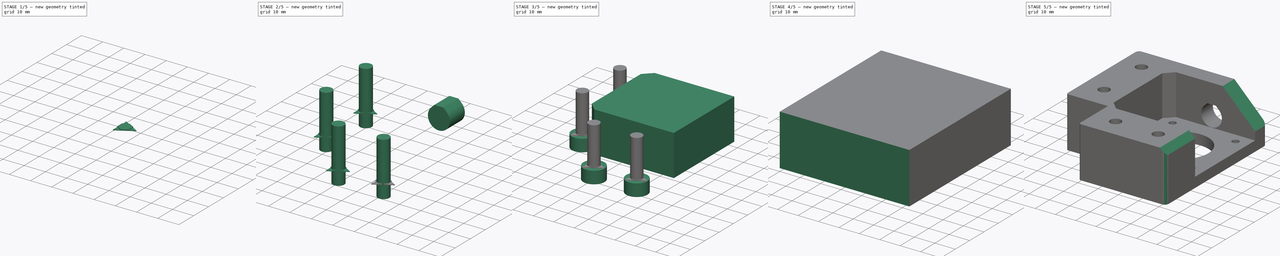
[diagram: build sequence overview — one tinted view per stage of 5, left to right]
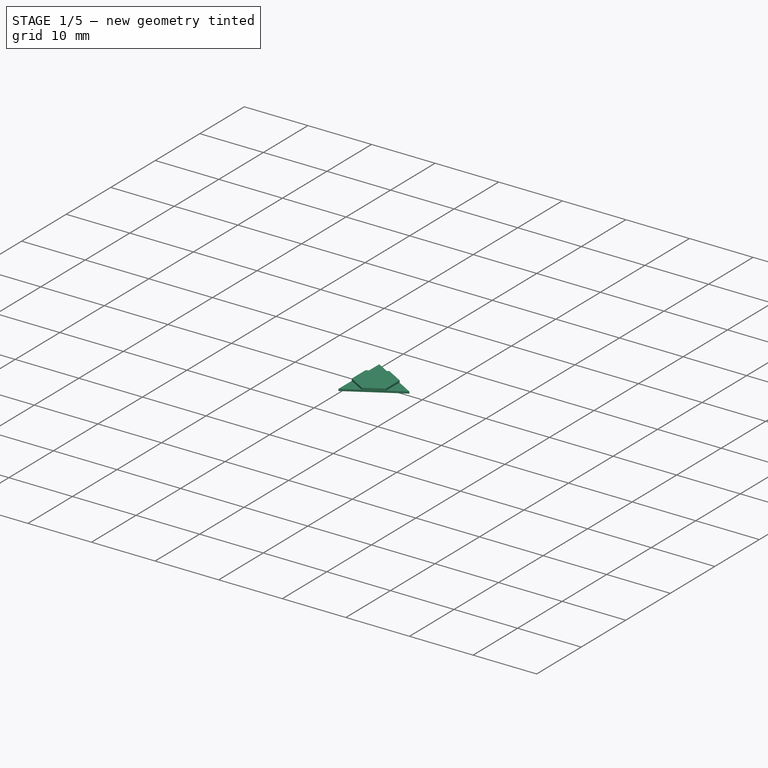
[diagram: stage 1 of 5 — iso view after this stage's code; geometry added in this stage tinted green]
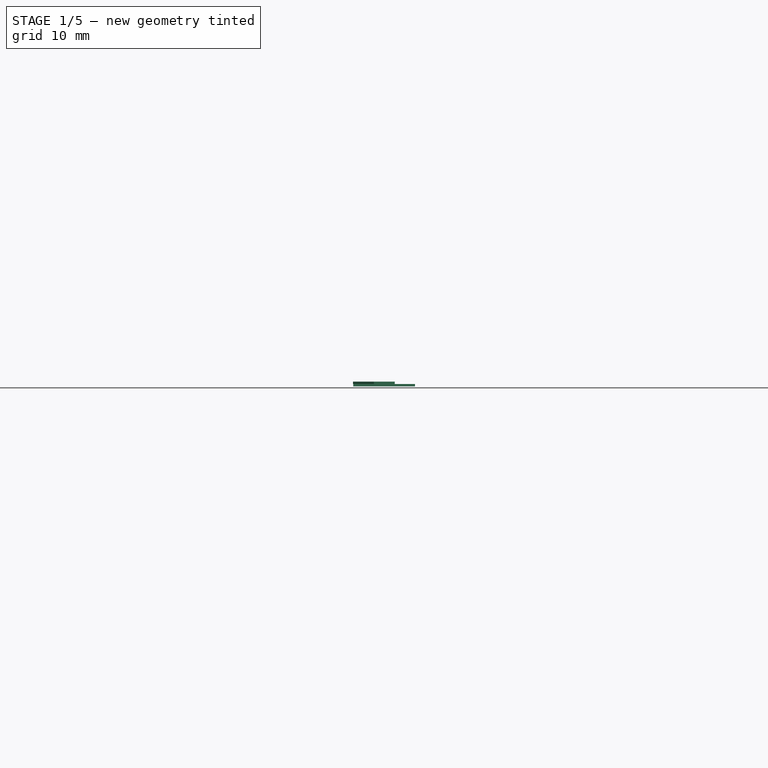
[diagram: stage 1 of 5 — front view after this stage's code; geometry added in this stage tinted green]
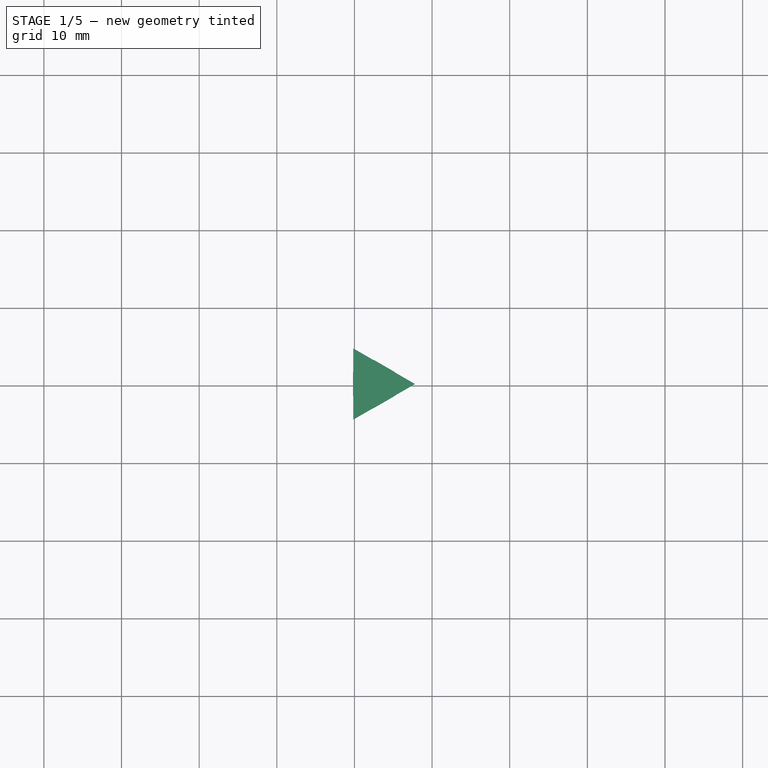
[diagram: stage 1 of 5 — top view after this stage's code; geometry added in this stage tinted green]
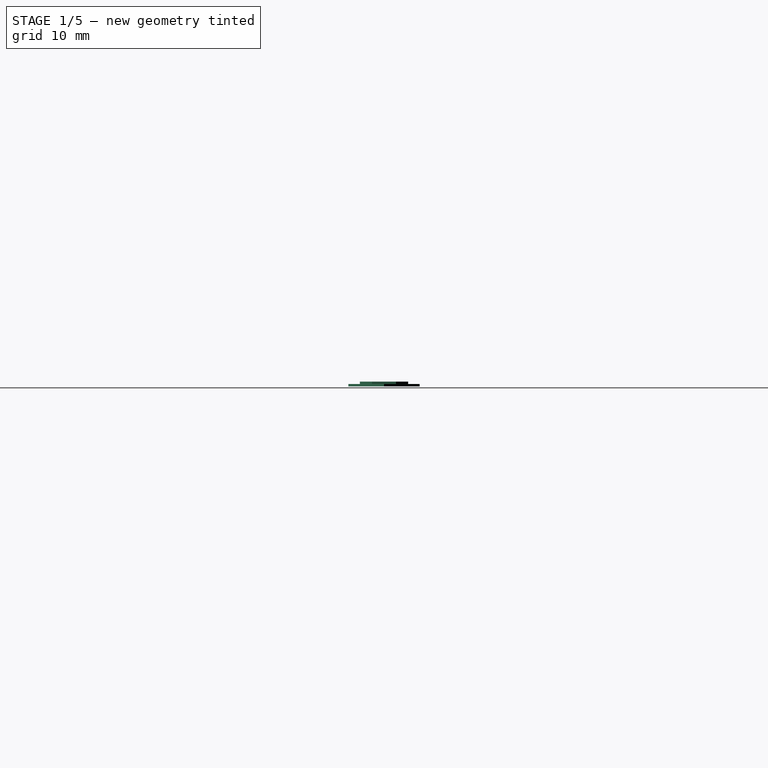
[diagram: stage 1 of 5 — right view after this stage's code; geometry added in this stage tinted green]
FCSTD DOCUMENT  (FreeCAD 0.15R4671 (Git))
Label: YmotorLeft_v02
License: All rights reserved
LicenseURL: http://en.wikipedia.org/wiki/All_rights_reserved
objects: Part::MultiFuse×5, Sketcher::SketchObject×4, Part::Extrusion×4, Part::Box×3, Part::Cut×3, Part::FeaturePython×3, Part::Chamfer×2, Part::Prism×2, Part::Fillet×1
note: 27 computed .brp shape members not serialized (recipe doc carries the construction recipe); baked Part::Feature solids carry a one-line shape summary decoded from their .brp

FEATURE [Part::Prism] Prism  label="triangulo_soporte"
  Circumradius = 5.3
  Height = 0.3
  Placement = pos=(10.25,32.5,6) rot=(0,0,1;0rad)
  Polygon = 3
FEATURE [Part::Prism] Prism001  label="hexagono_soporte"
  Circumradius = 3.1
  Height = 0.3
  Placement = pos=(10.25,32.5,6.3) rot=(0,0,1;0.523599rad)
  Polygon = 6
FEATURE [Part::MultiFuse] Fusion003  label="soporte_circulos"
  Shapes = -> [Prism,Prism001]
FEATURE [Part::FeaturePython] Clone001  label="soporte_circulos_3"  # Draft clone (typed FeaturePython)
  Objects = -> [Fusion003]
  Placement = pos=(21.25,-22.25,0) rot=(0,0,1;0rad)
  Scale = (1,1,1)
FEATURE [Part::FeaturePython] Clone002  label="soporte_circulos_4"  # Draft clone (typed FeaturePython)
  Objects = -> [Clone001]
  Placement = pos=(42.25,-22.25,0) rot=(0,0,1;0rad)
  Scale = (1,1,1)
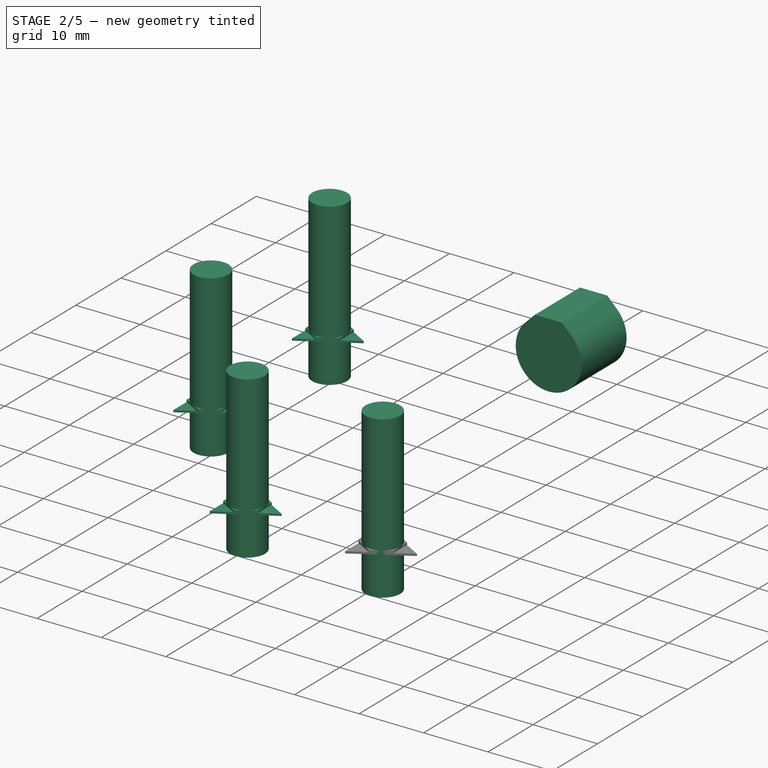
[diagram: stage 2 of 5 — iso view after this stage's code; geometry added in this stage tinted green]
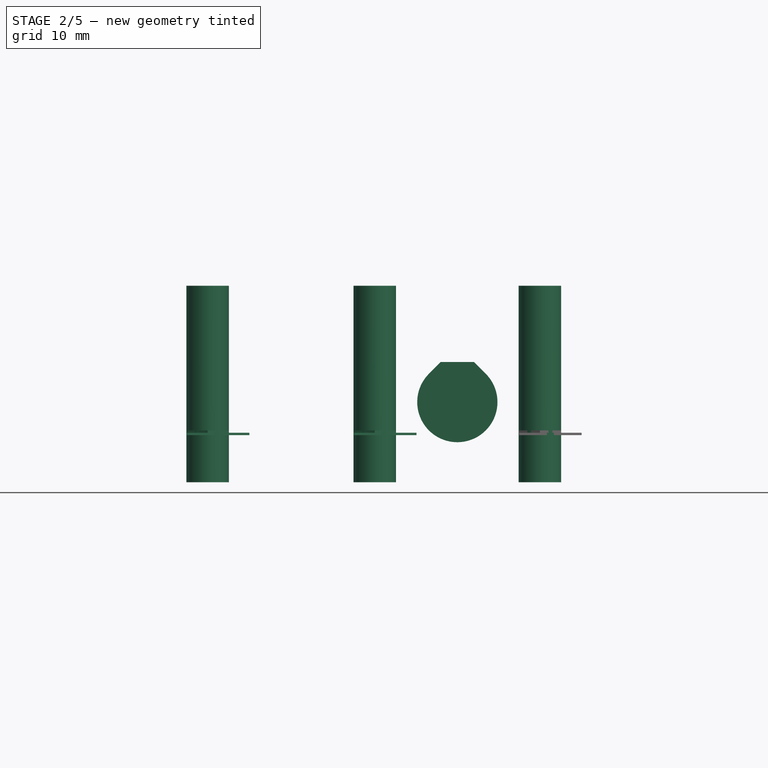
[diagram: stage 2 of 5 — front view after this stage's code; geometry added in this stage tinted green]
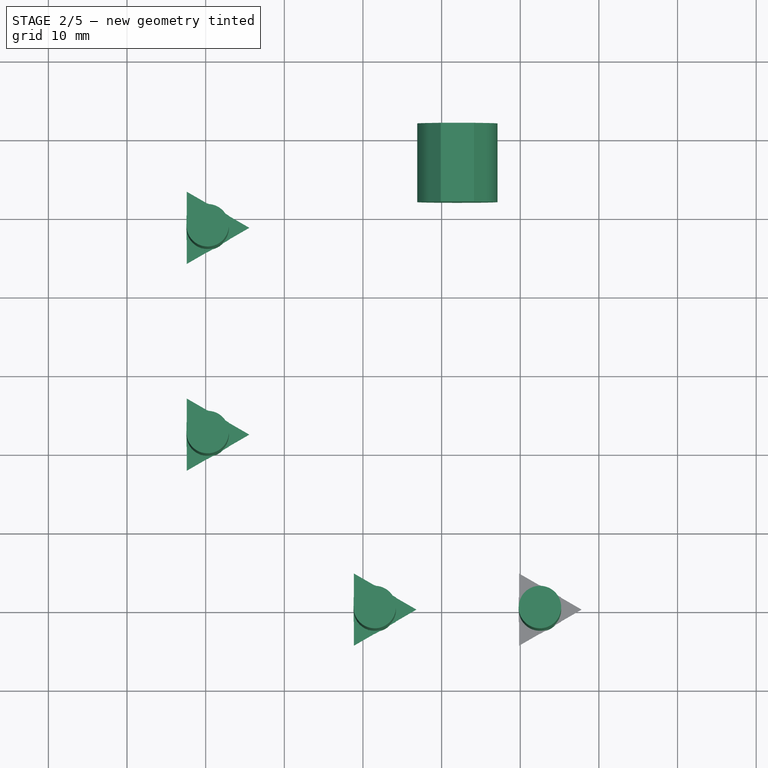
[diagram: stage 2 of 5 — top view after this stage's code; geometry added in this stage tinted green]
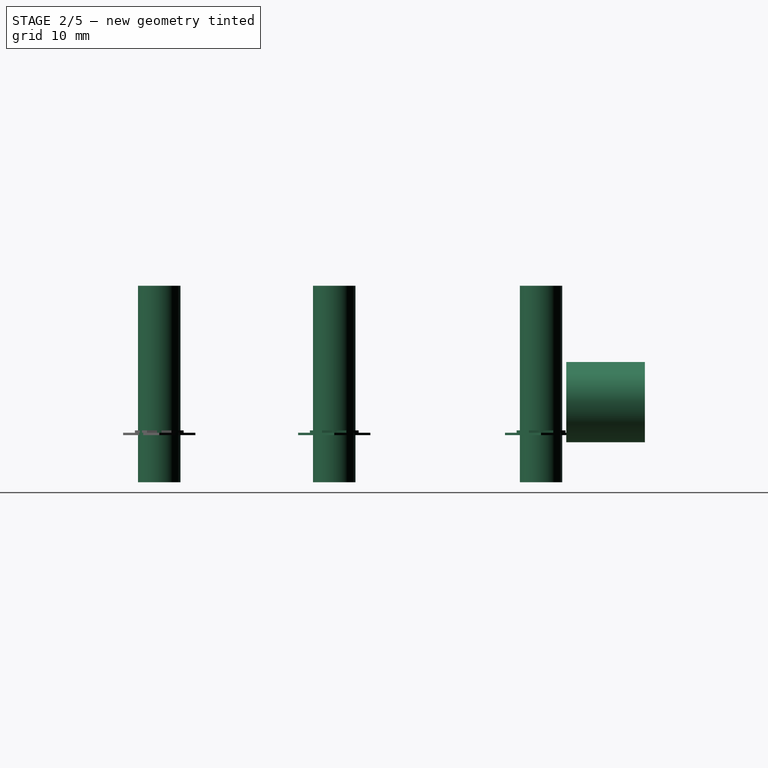
[diagram: stage 2 of 5 — right view after this stage's code; geometry added in this stage tinted green]
FEATURE [Sketcher::SketchObject] Sketch002  label="huecos_tornillos"
  sketch-geometry (4):
    g0: Circle CenterX=31.5 CenterY=10.25 CenterZ=0 NormalX=0 NormalY=0 NormalZ=1 Radius=2.7
    g1: Circle CenterX=52.5 CenterY=10.25 CenterZ=0 NormalX=0 NormalY=0 NormalZ=1 Radius=2.7
    g2: Circle CenterX=10.25 CenterY=32.5 CenterZ=0 NormalX=0 NormalY=0 NormalZ=1 Radius=2.7
    g3: Circle CenterX=10.25 CenterY=58.8 CenterZ=0 NormalX=0 NormalY=0 NormalZ=1 Radius=2.7
  constraints (12):
    c: DistanceY(g-1,g0) = 10.25
    c: Radius(g0) = 2.7
    c: DistanceX(g-1,g0) = 31.5
    c: DistanceY(g1,g0) = 0
    c: DistanceX(g1,g0) = -21
    c: Equal(g1,g0)
    c: DistanceX(g-1,g2) = 10.25
    c: Equal(g2,g0)
    c: DistanceY(g-1,g2) = 32.5
    c: DistanceX(g3,g2) = 0
    c: DistanceY(g3,g2) = -26.3
    c: Equal(g3,g2)
FEATURE [Part::Extrusion] Extrude002  label="huecos_tornillos_extr"
  Base = -> Sketch002
  Dir = (0,0,25)
  Solid = true
FEATURE [Sketcher::SketchObject] Sketch003  label="M10_repraphole"
  Placement = pos=(0,0,0) rot=(0.57735,0.57735,0.57735;2.0944rad)
  sketch-geometry (4):
    g0: ArcOfCircle CenterX=0 CenterY=0 CenterZ=0 NormalX=0 NormalY=0 NormalZ=1 Radius=5.1 StartAngle=2.3562 EndAngle=7.06858
    g1: LineSegment StartX=-3.60626 StartY=3.60623 StartZ=0 EndX=-2.11249 EndY=5.1 EndZ=0
    g2: LineSegment StartX=2.11249 StartY=5.1 StartZ=0 EndX=3.60626 EndY=3.60623 EndZ=0
    g3: LineSegment StartX=-2.11249 StartY=5.1 StartZ=0 EndX=2.11249 EndY=5.1 EndZ=0
  constraints (12):
    c: Coincident(g0,g-1)
    c: Radius(g0) = 5.1  'M5'
    c: Angle(g-1,g1) = 0.785398
    c: Horizontal(g3)
    c: Coincident(g3,g1)
    c: Coincident(g3,g2)
    c: Coincident(g0,g1)
    c: Coincident(g0,g2)
    c: DistanceY(g-1,g1) = 5.1  'M5radio'
    c: Angle(g2,g-1) = 0.785398
    c: Tangent(g2,g0)
    c: Tangent(g1,g0)
FEATURE [Part::Extrusion] Extrude003  label="M10_repraphole_extr"
  Base = -> Sketch003
  Dir = (10,0,0)
  Placement = pos=(42,62,10.2) rot=(0,0,1;1.5708rad)
  Solid = true
FEATURE [Part::FeaturePython] Clone  label="soporte_circulos_2"  # Draft clone (typed FeaturePython)
  Objects = -> [Fusion003]
  Placement = pos=(0,26.3,0) rot=(0,0,1;0rad)
  Scale = (1,1,1)
FEATURE [Part::MultiFuse] Fusion004  label="huecos_soporte_taladros"
  Shapes = -> [Fusion003,Clone,Clone001,Clone002]
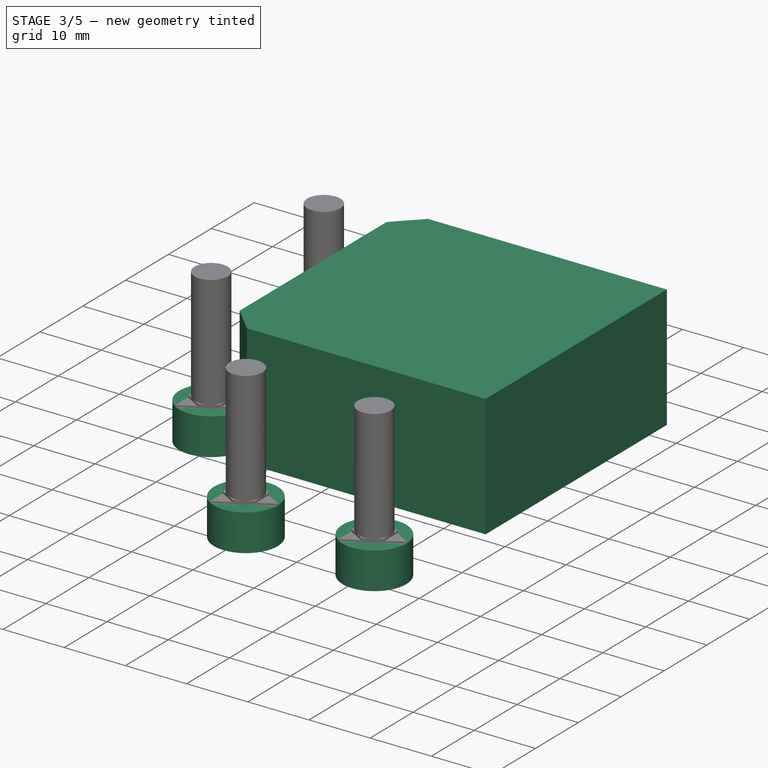
[diagram: stage 3 of 5 — iso view after this stage's code; geometry added in this stage tinted green]
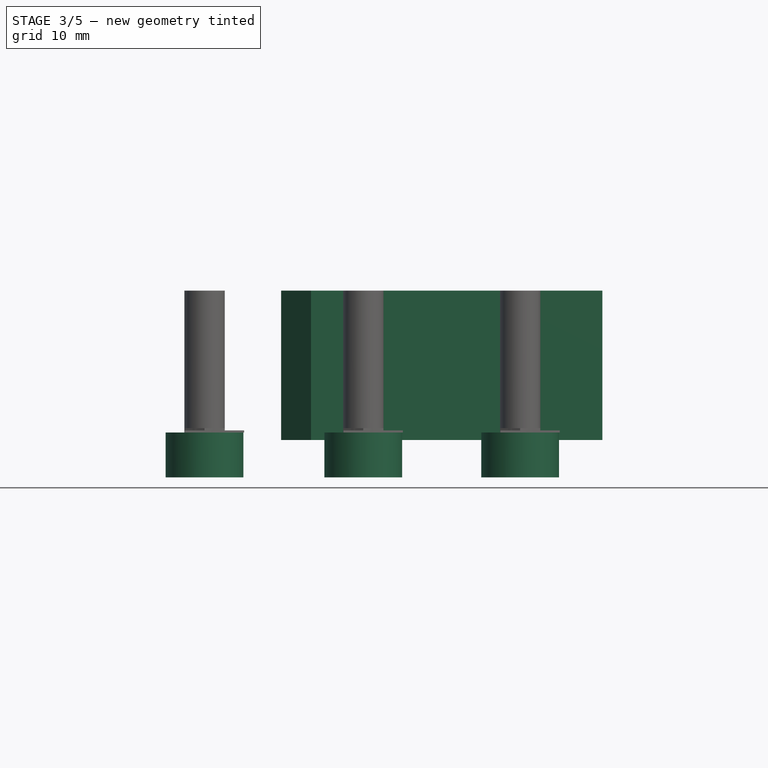
[diagram: stage 3 of 5 — front view after this stage's code; geometry added in this stage tinted green]
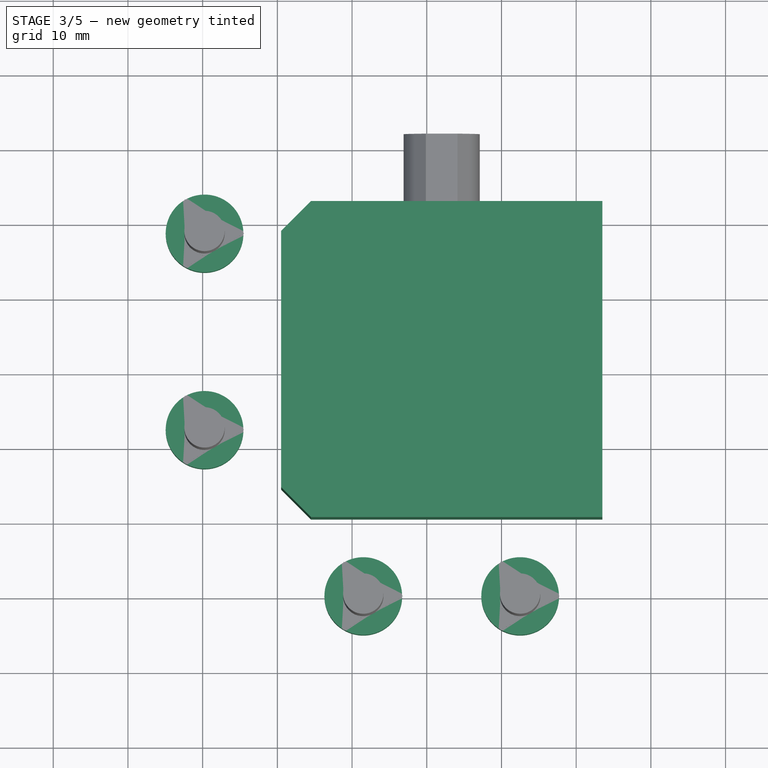
[diagram: stage 3 of 5 — top view after this stage's code; geometry added in this stage tinted green]
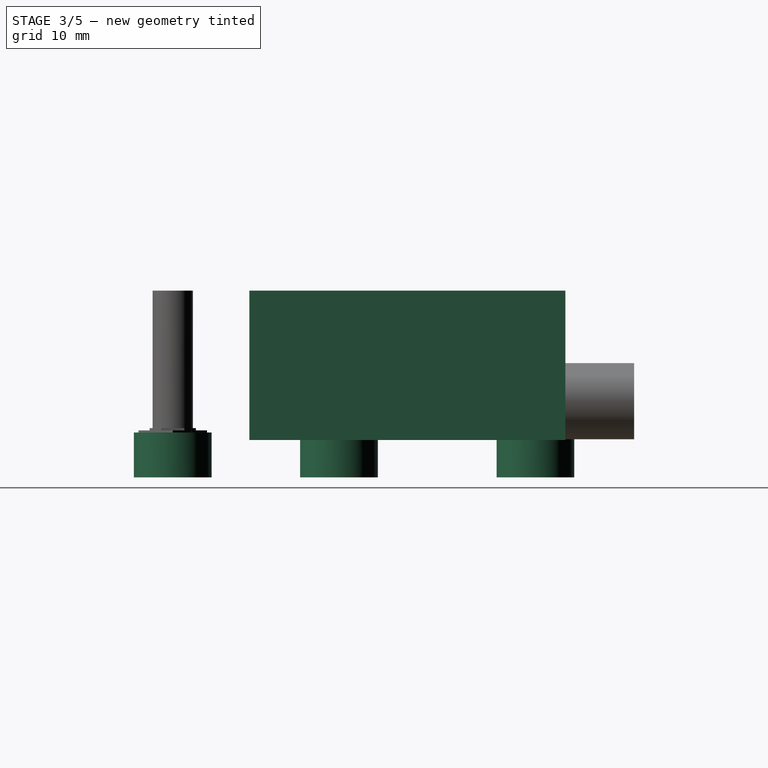
[diagram: stage 3 of 5 — right view after this stage's code; geometry added in this stage tinted green]
FEATURE [Part::Box] Box002  label="hueco_motor"
  Height = 20
  Length = 43
  Placement = pos=(20.5,20.5,5) rot=(0,0,1;0rad)
  Width = 42.3
FEATURE [Part::Chamfer] Chamfer  label="hueco_motor_chaflan"
  Base = -> Box002
  Edges = 2 edges r=4: [Edge1,Edge3]
FEATURE [Sketcher::SketchObject] Sketch001  label="huecos_cabeza_tornillos"
  sketch-geometry (4):
    g0: Circle CenterX=31.5 CenterY=10.25 CenterZ=0 NormalX=0 NormalY=0 NormalZ=1 Radius=5.2
    g1: Circle CenterX=52.5 CenterY=10.25 CenterZ=0 NormalX=0 NormalY=0 NormalZ=1 Radius=5.2
    g2: Circle CenterX=10.25 CenterY=32.5 CenterZ=0 NormalX=0 NormalY=0 NormalZ=1 Radius=5.2
    g3: Circle CenterX=10.25 CenterY=58.8 CenterZ=0 NormalX=0 NormalY=0 NormalZ=1 Radius=5.2
  constraints (12):
    c: DistanceY(g-1,g0) = 10.25
    c: Radius(g0) = 5.2
    c: DistanceX(g-1,g0) = 31.5
    c: DistanceY(g1,g0) = 0
    c: DistanceX(g1,g0) = -21
    c: Equal(g1,g0)
    c: DistanceX(g-1,g2) = 10.25
    c: Equal(g2,g0)
    c: DistanceY(g-1,g2) = 32.5
    c: DistanceX(g3,g2) = 0
    c: DistanceY(g3,g2) = -26.3
    c: Equal(g3,g2)
FEATURE [Part::Extrusion] Extrude001  label="huecos_cabeza_tornillos_extr"
  Base = -> Sketch001
  Dir = (0,0,6)
  Solid = true
FEATURE [Part::MultiFuse] Fusion001  label="huecos_tornillos_todo"
  Shapes = -> [Extrude001,Extrude002]
FEATURE [Part::MultiFuse] Fusion005  label="huecos_2"
  Shapes = -> [Fusion001,Extrude003,Fusion004]
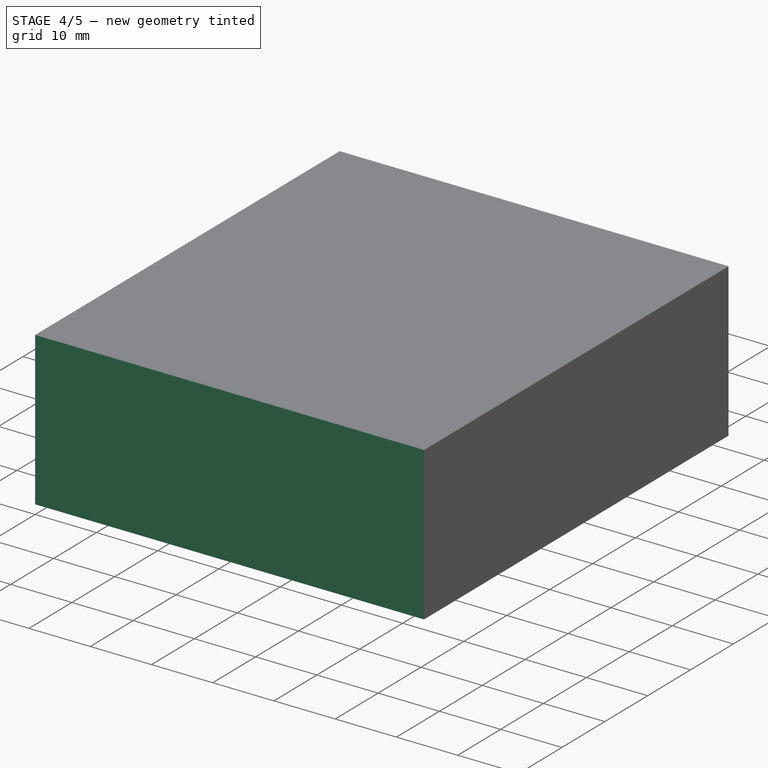
[diagram: stage 4 of 5 — iso view after this stage's code; geometry added in this stage tinted green]
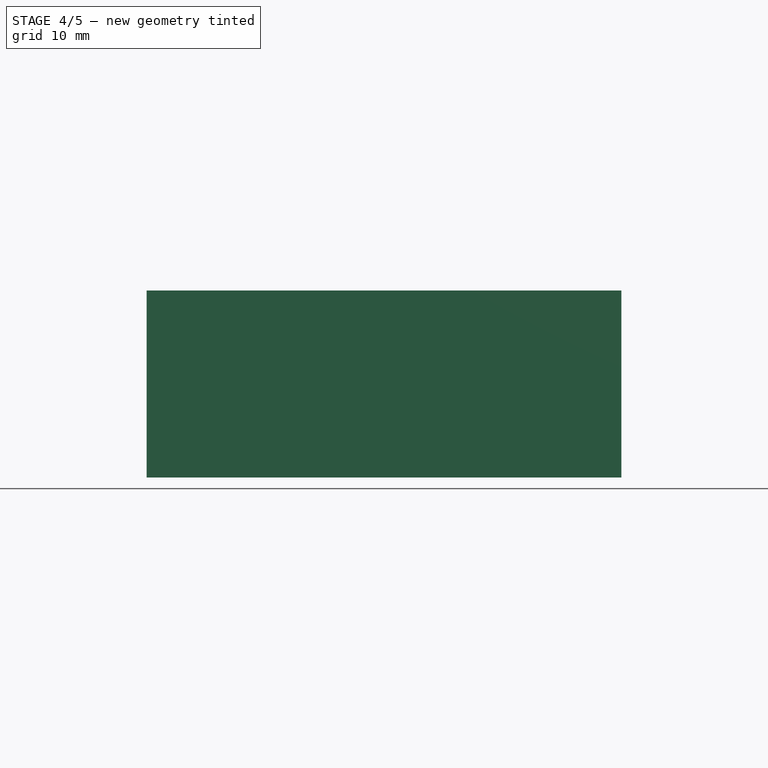
[diagram: stage 4 of 5 — front view after this stage's code; geometry added in this stage tinted green]
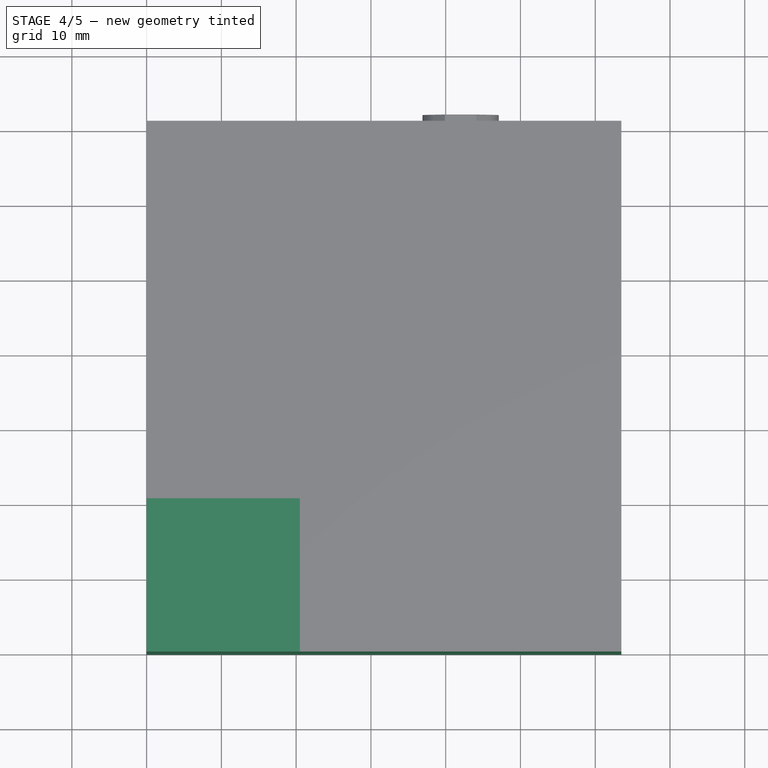
[diagram: stage 4 of 5 — top view after this stage's code; geometry added in this stage tinted green]
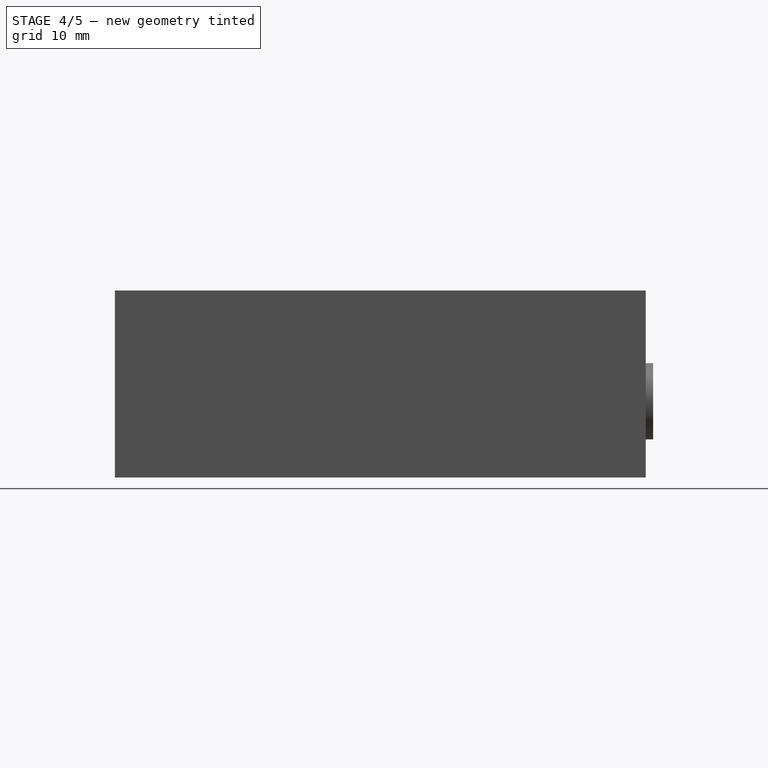
[diagram: stage 4 of 5 — right view after this stage's code; geometry added in this stage tinted green]
FEATURE [Part::Box] Box  label="cubo_base"
  Height = 25
  Length = 63.5
  Width = 71
FEATURE [Part::Box] Box001  label="hueco_columna_z"
  Height = 25
  Length = 20.5
  Width = 20.5
FEATURE [Sketcher::SketchObject] Sketch
  Placement = pos=(20.5,20.5,25) rot=(0,0,1;0rad)
  Support = -> Box002 [Face6]
  sketch-geometry (5):
    g0: Circle CenterX=21.5 CenterY=21.5 CenterZ=0 NormalX=0 NormalY=0 NormalZ=1 Radius=13
    g1: Circle CenterX=6 CenterY=37 CenterZ=0 NormalX=0 NormalY=0 NormalZ=1 Radius=1.65
    g2: Circle CenterX=37 CenterY=37 CenterZ=0 NormalX=0 NormalY=0 NormalZ=1 Radius=1.65
    g3: Circle CenterX=37 CenterY=6 CenterZ=0 NormalX=0 NormalY=0 NormalZ=1 Radius=1.65
    g4: Circle CenterX=6 CenterY=6 CenterZ=0 NormalX=0 NormalY=0 NormalZ=1 Radius=1.65
  constraints (15):
    c: DistanceY(g-1,g0) = 21.5
    c: DistanceX(g-1,g0) = 21.5
    c: Radius(g0) = 13
    c: DistanceX(g1,g0) = 15.5
    c: Radius(g1) = 1.65
    c: DistanceY(g2,g1) = 0
    c: DistanceY(g1,g0) = -15.5
    c: Equal(g2,g1)
    c: DistanceX(g2,g0) = -15.5
    c: DistanceX(g3,g2) = 0
    c: DistanceX(g4,g1) = 0
    c: DistanceY(g4,g3) = 0
    c: DistanceY(g3,g0) = 15.5
    c: Equal(g3,g2)
    c: Equal(g4,g3)
FEATURE [Part::Extrusion] Extrude  label="agujero_motor"
  Base = -> Sketch
  Dir = (0,0,5)
  Placement = pos=(0,0,-25) rot=(0,0,1;0rad)
  Solid = true
FEATURE [Part::MultiFuse] Fusion  label="hueco_motor_total"
  Shapes = -> [Chamfer,Extrude]
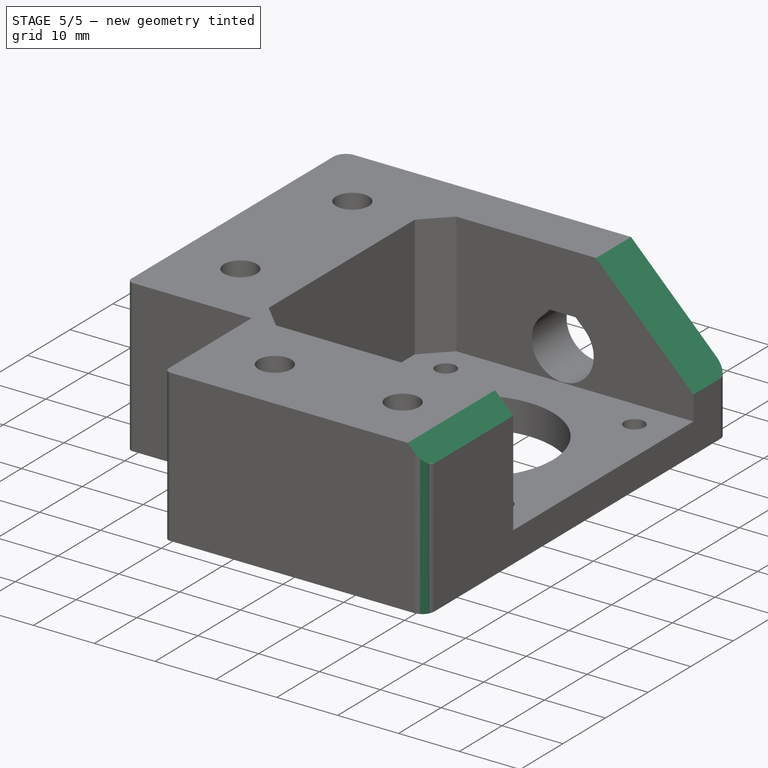
[diagram: stage 5 of 5 — iso view after this stage's code; geometry added in this stage tinted green]
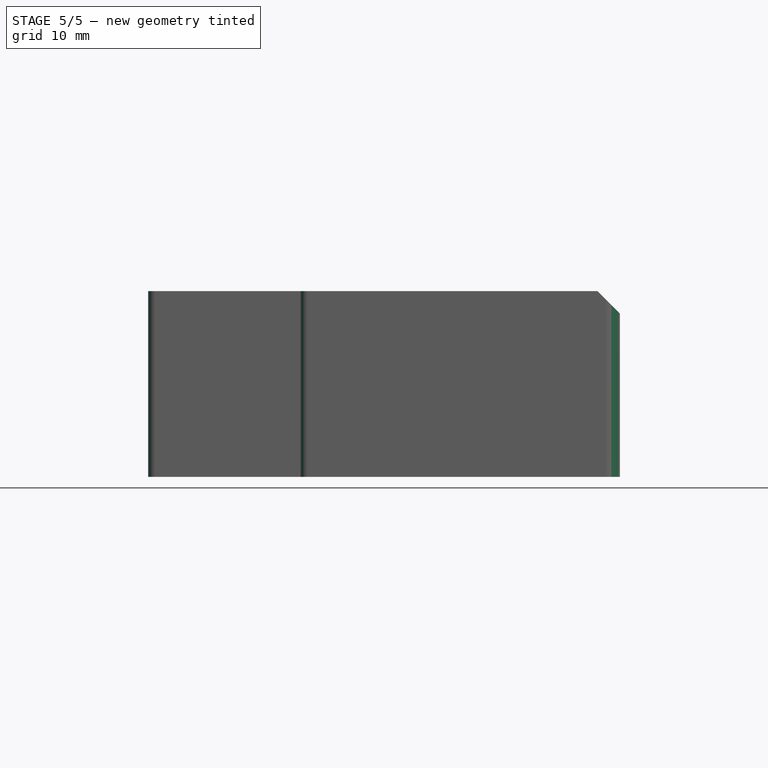
[diagram: stage 5 of 5 — front view after this stage's code; geometry added in this stage tinted green]
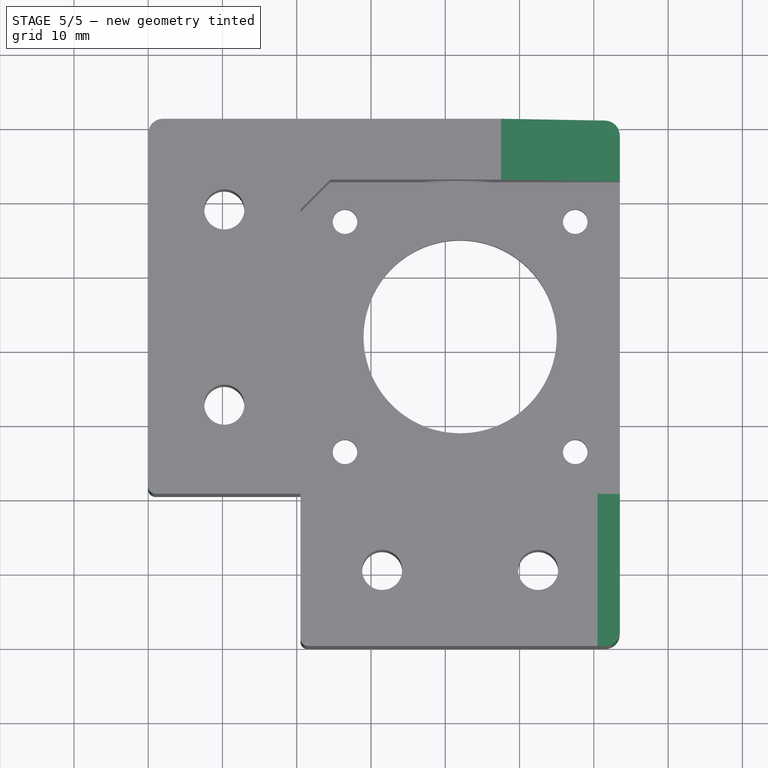
[diagram: stage 5 of 5 — top view after this stage's code; geometry added in this stage tinted green]
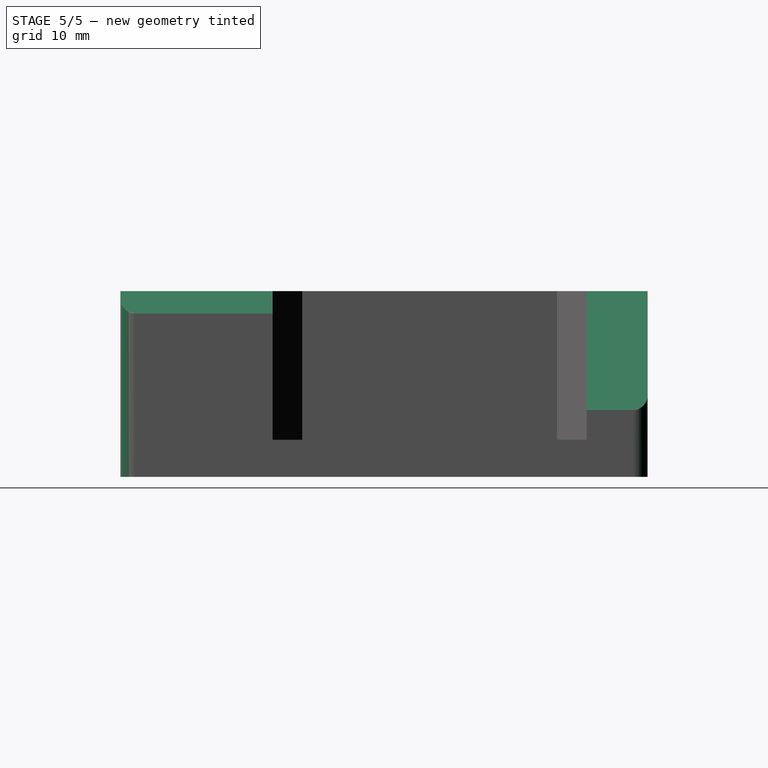
[diagram: stage 5 of 5 — right view after this stage's code; geometry added in this stage tinted green]
FEATURE [Part::Cut] Cut  label="cubo_base_sin_columna"
  Base = -> Box
  Tool = -> Box001
FEATURE [Part::Cut] Cut001  label="base_sin_motor_columna"
  Base = -> Cut
  Tool = -> Fusion
FEATURE [Part::Cut] Cut003  label="YmotorLeft_casi"
  Base = -> Cut001
  Tool = -> Fusion005
FEATURE [Part::Chamfer] Chamfer001  label="YmotorLeft_chaflan"
  Base = -> Cut003
  Edges = 2 edges: [Edge10 r=16,Edge13 r=3]
FEATURE [Part::Fillet] Fillet  label="YmotorLeft"
  Base = -> Chamfer001
  Edges = 5 edges: [Edge17 r=2,Edge20 r=2,Edge27 r=1,Edge40 r=1,Edge44 r=2]
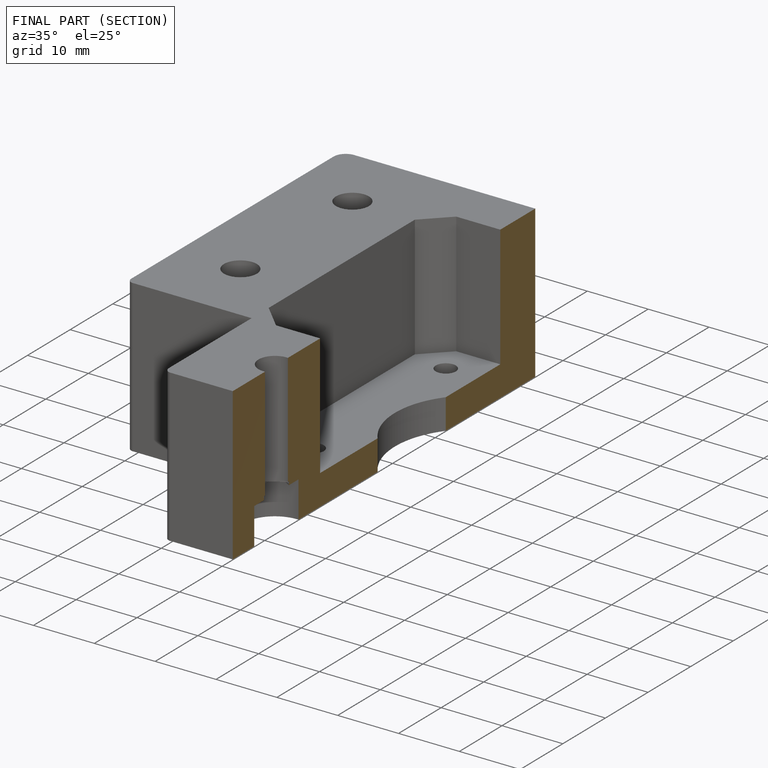
[diagram: finished part — half-section view (interior)]
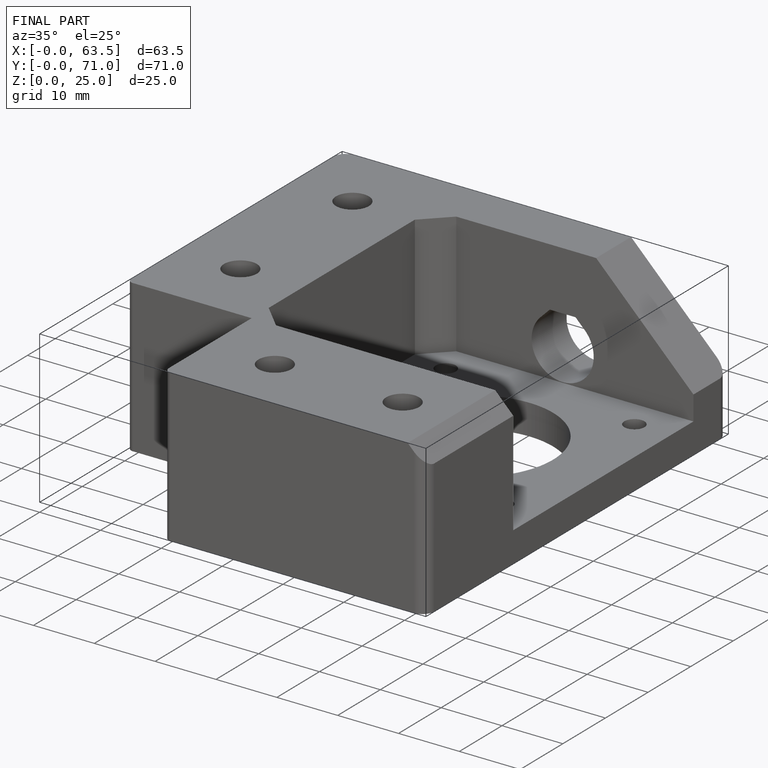
[diagram: finished part — iso view with bounding-box wireframe]
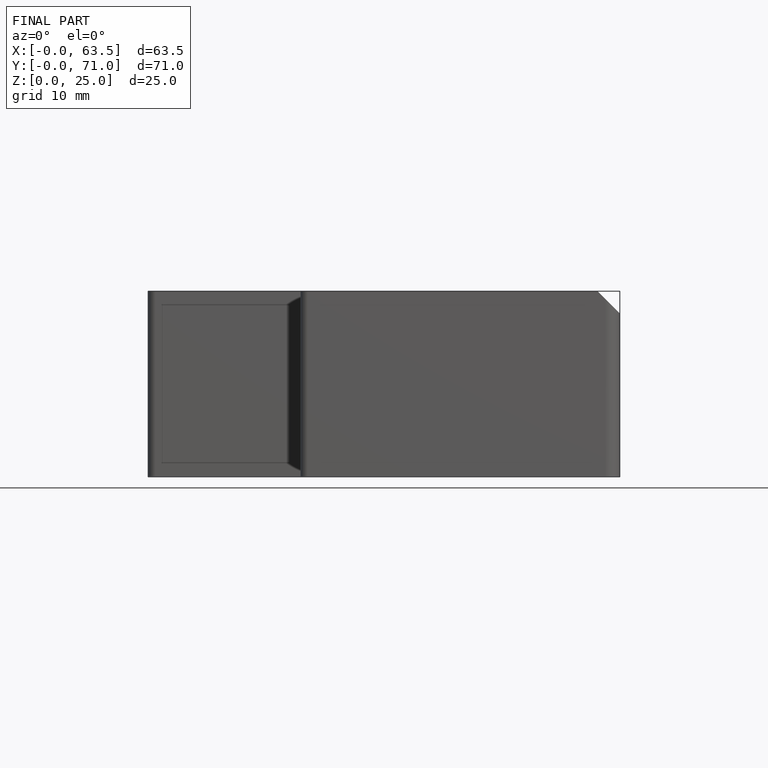
[diagram: finished part — front view with bounding-box wireframe]
